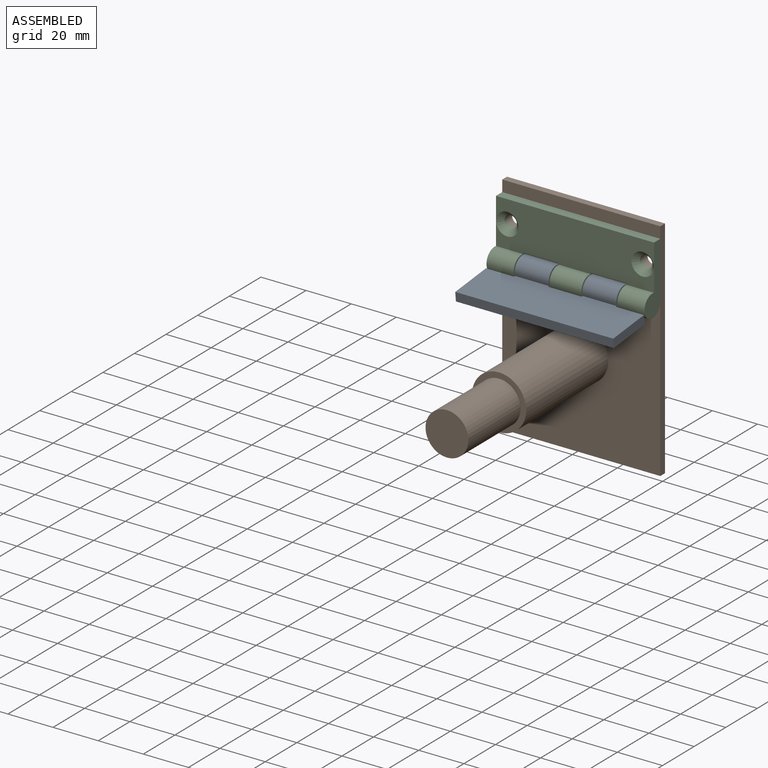
[diagram: assembled view]
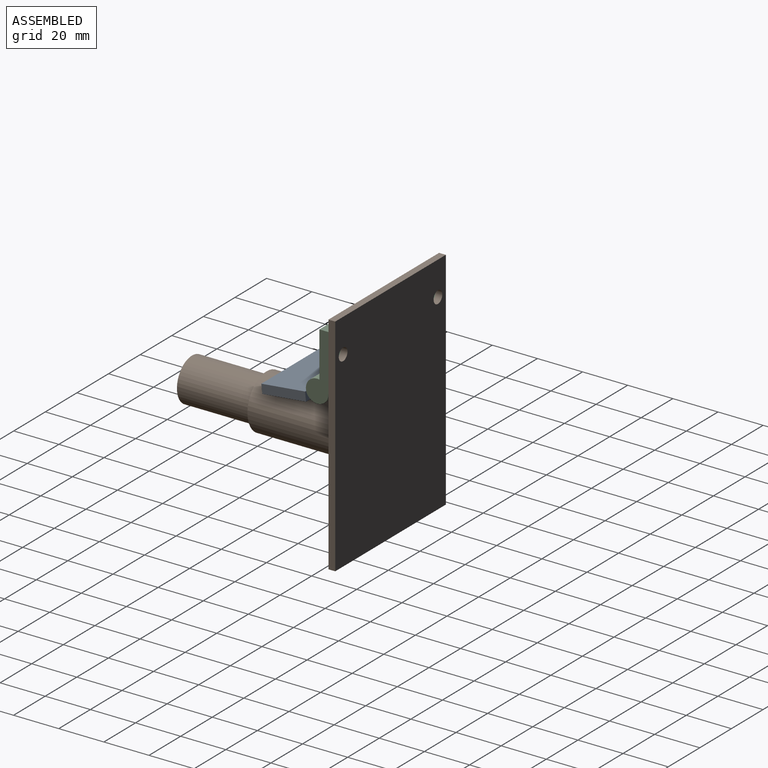
[diagram: assembled view, second angle]
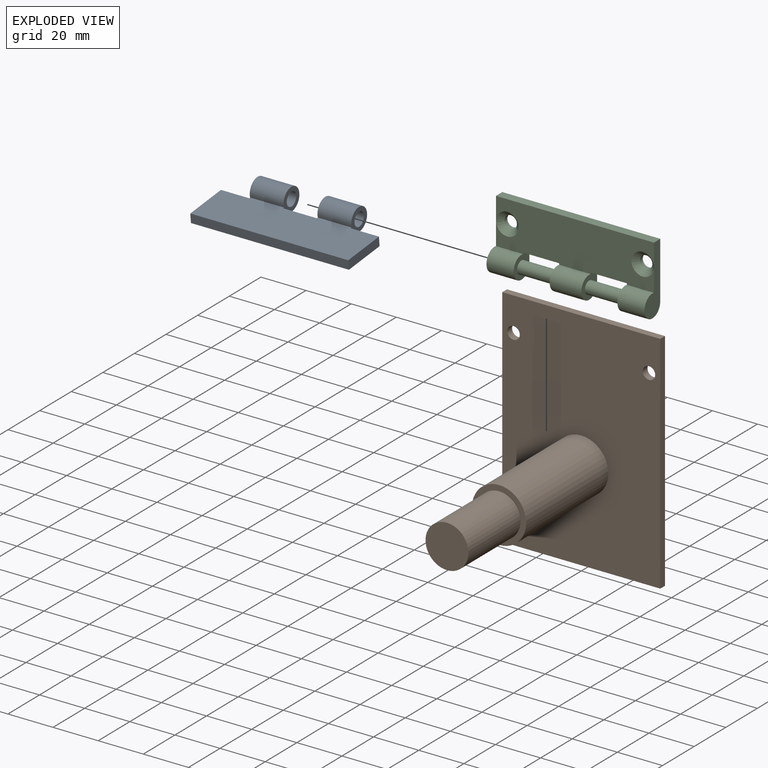
[diagram: exploded view]
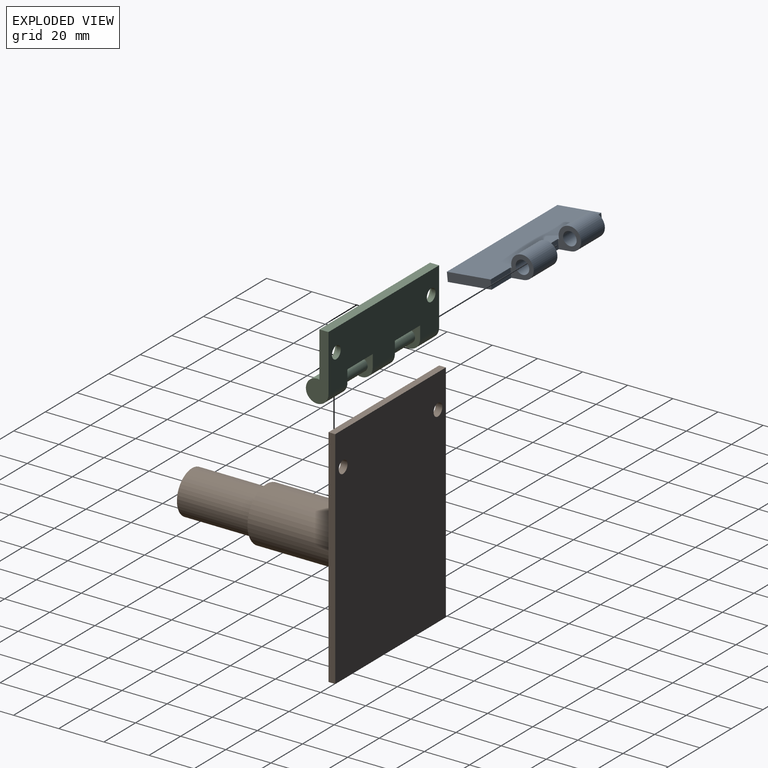
[diagram: exploded view, second angle]
ASSEMBLY  parts=3 mates=5
PART A: 16 faces, bbox 10x30x70 mm
  f0: plane 70x25mm, normal (1,0,0), area 1530mm2, adj f3,f5,f6,f7,f8,f9,f10,f11
  f1: cylinder r=3mm len=15mm, axis (0,0,-1), area 282.7mm2, adj f10,f15
  f2: plane 70x20.1mm, normal (-1,0,0), area 1383mm2, adj f3,f5,f6,f7,f8,f9,f10,f11
  f3: cylinder r=5mm len=15mm, axis (0,0,-1), area 368.5mm2, adj f0,f2,f11,f13
  f4: cylinder r=3mm len=15mm, axis (0,0,-1), area 282.7mm2, adj f11,f13
  f5: cylinder r=5mm len=15mm, axis (0,0,-1), area 368.5mm2, adj f0,f2,f10,f15
  f6: plane 70x4mm, normal (0,1,0), area 280mm2, adj f0,f2,f7,f8
  f7: plane 19.5x4mm, normal (0,0,1), area 78mm2, adj f0,f2,f6,f12
  f8: plane 19.5x4mm, normal (0,0,-1), area 78mm2, adj f0,f2,f6,f14
  f9: plane 15x4mm, normal (0,-1,0), area 60mm2, adj f0,f2,f10,f11
  f10: plane 10.5x10mm, normal (0,0,1), area 57.6mm2, adj f0,f1,f2,f5,f9
  f11: plane 10.5x10mm, normal (0,0,-1), area 57.6mm2, adj f0,f2,f3,f4,f9
  f12: plane 12.5x4mm, normal (0,-1,0), area 50mm2, adj f0,f2,f7,f13
  f13: plane 10.5x10mm, normal (0,0,1), area 57.6mm2, adj f0,f2,f3,f4,f12
  f14: plane 12.5x4mm, normal (0,-1,0), area 50mm2, adj f0,f2,f8,f15
  f15: plane 10.5x10mm, normal (0,0,-1), area 57.6mm2, adj f0,f1,f2,f5,f14
PART B: 12 faces, bbox 70x88x100 mm
  f0: cylinder r=12mm len=52mm, axis (0,1,0), area 3920.7mm2, adj f1,f11
  f1: plane 24x24mm, normal (0,-1,0), area 168.9mm2, adj f0,f2
  f2: cylinder r=9.5mm len=33mm, axis (0,1,0), area 1969.8mm2, adj f1,f3
  f3: plane 19x19mm, normal (0,-1,0), area 283.5mm2, adj f2
  f4: plane 70x3mm, normal (0,0,1), area 210mm2, adj f5,f9,f10,f11
  f5: plane 100x3mm, normal (1,0,0), area 300mm2, adj f4,f6,f10,f11
  f6: plane 70x3mm, normal (0,0,-1), area 210mm2, adj f5,f9,f10,f11
  f7: cylinder r=2.75mm len=5.5mm, axis (0,-1,0), area 51.8mm2, adj f10,f11
  f8: cylinder r=2.75mm len=5.5mm, axis (0,-1,0), area 51.8mm2, adj f10,f11
  f9: plane 100x3mm, normal (-1,0,0), area 300mm2, adj f4,f6,f10,f11
  f10: plane 100x70mm, normal (0,1,0), area 6952.5mm2, adj f4,f5,f6,f7,f8,f9
  f11: plane 100x70mm, normal (0,-1,0), area 6500.1mm2, adj f0,f4,f5,f6,f7,f8,f9
PART C: 20 faces, bbox 10x30x70 mm
  f0: cylinder r=5mm len=12mm, axis (0,0,-1), area 294.8mm2, adj f1,f2,f7,f14
  f1: plane 70x25mm, normal (1,0,0), area 1526.5mm2, adj f0,f3,f4,f5,f6,f7,f9,f10
  f2: plane 70x20.1mm, normal (-1,0,0), area 1233.9mm2, adj f0,f3,f4,f5,f6,f7,f9,f10
  f3: cylinder r=5mm len=14mm, axis (0,0,-1), area 344mm2, adj f1,f2,f11,f15
  f4: cylinder r=5mm len=12mm, axis (0,0,-1), area 294.8mm2, adj f1,f2,f6,f10
  f5: plane 70x4mm, normal (0,1,0), area 280mm2, adj f1,f2,f6,f7
  f6: plane 30x10mm, normal (0,0,1), area 163.9mm2, adj f1,f2,f4,f5
  f7: plane 30x10mm, normal (0,0,-1), area 163.9mm2, adj f0,f1,f2,f5
  f8: cylinder r=2.75mm len=16mm, axis (0,0,-1), area 276.5mm2, adj f10,f11
  f9: plane 16x4mm, normal (0,-1,0), area 64mm2, adj f1,f2,f10,f11
  f10: plane 10.5x10mm, normal (0,0,-1), area 62.1mm2, adj f1,f2,f4,f8,f9
  f11: plane 10.5x10mm, normal (0,0,1), area 62.1mm2, adj f1,f2,f3,f8,f9
  f12: plane 16x4mm, normal (0,-1,0), area 64mm2, adj f1,f2,f14,f15
  f13: cylinder r=2.75mm len=16mm, axis (0,0,1), area 276.5mm2, adj f14,f15
  f14: plane 10.5x10mm, normal (0,0,1), area 62.1mm2, adj f0,f1,f2,f12,f13
  f15: plane 10.5x10mm, normal (0,0,-1), area 62.1mm2, adj f1,f2,f3,f12,f13
  f16: cylinder r=2.75mm len=5.5mm, axis (-1,0,0), area 31.1mm2, adj f1,f18
  f17: cylinder r=2.75mm len=5.5mm, axis (-1,0,0), area 31.1mm2, adj f1,f19
  f18: cone r=2.75mm half-angle=45deg, axis (-1,0,0), area 75.3mm2, adj f2,f16
  f19: cone r=2.75mm half-angle=45deg, axis (-1,0,0), area 75.3mm2, adj f2,f17
PLACE A rot(axis=(-0.71,-0.04,0.71),175.7deg) t=(0,-5,30)mm
PLACE B at identity fixed
PLACE C rot(axis=(0.58,0.58,0.58),120deg) t=(0,-5,30)mm
MATE parallel B.f4 <-> C.f5  axis (0,0,1) through (0,1.5,60)mm
MATE cylindrical C.f8 <-> A.f3  axis (1,0,0) through (-15,-5,30)mm
MATE planar B.f11 <-> C.f1  axis (0,-1,0) through (0,0,10.44)mm
MATE planar C.f0 <-> A.f7  axis (-1,0,0) through (-35,-5,30)mm
MATE cylindrical C.f17 <-> B.f8  axis (0,1,0) through (30,0,45)mm
